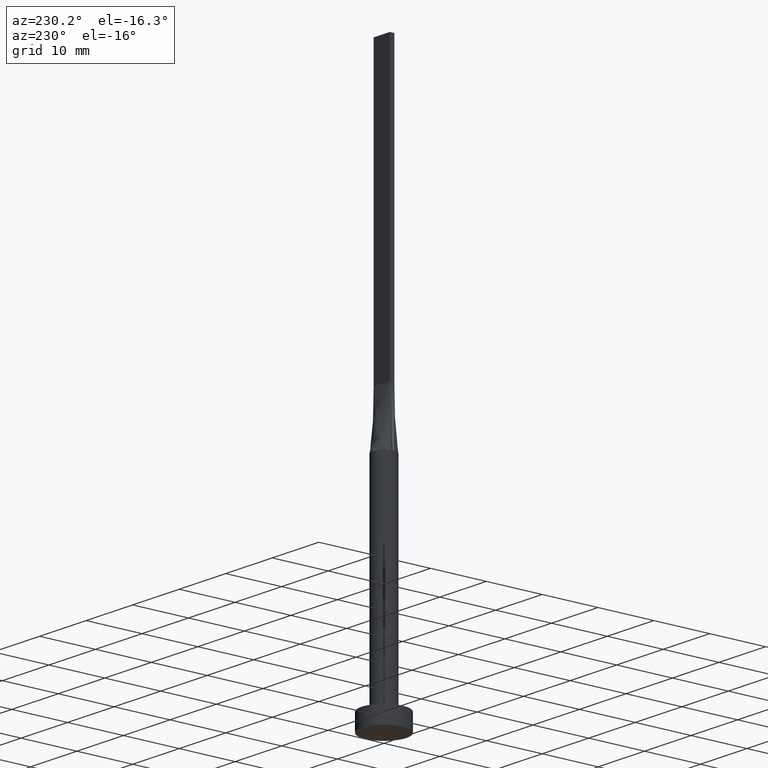
[diagram: clean part render]
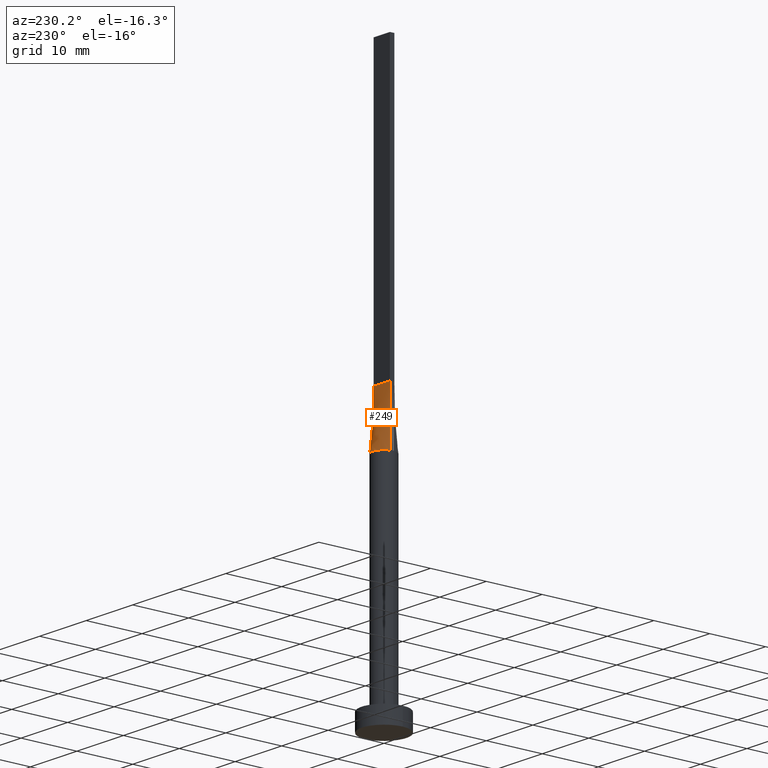
[diagram: same view with one face highlighted and labeled with its STEP entity id]
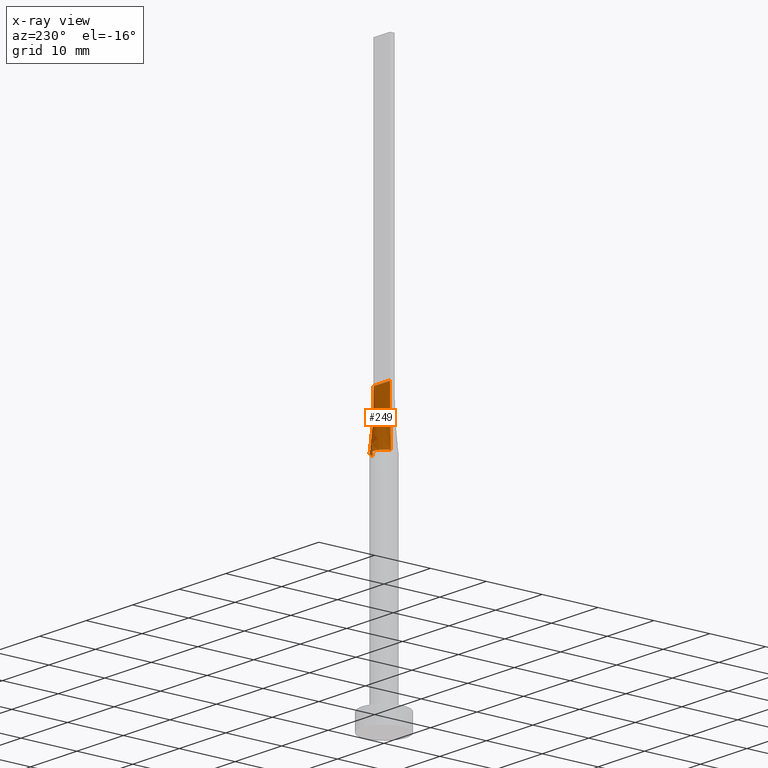
[diagram: x-ray of the same camera — body ghosted, the highlighted face saturated]
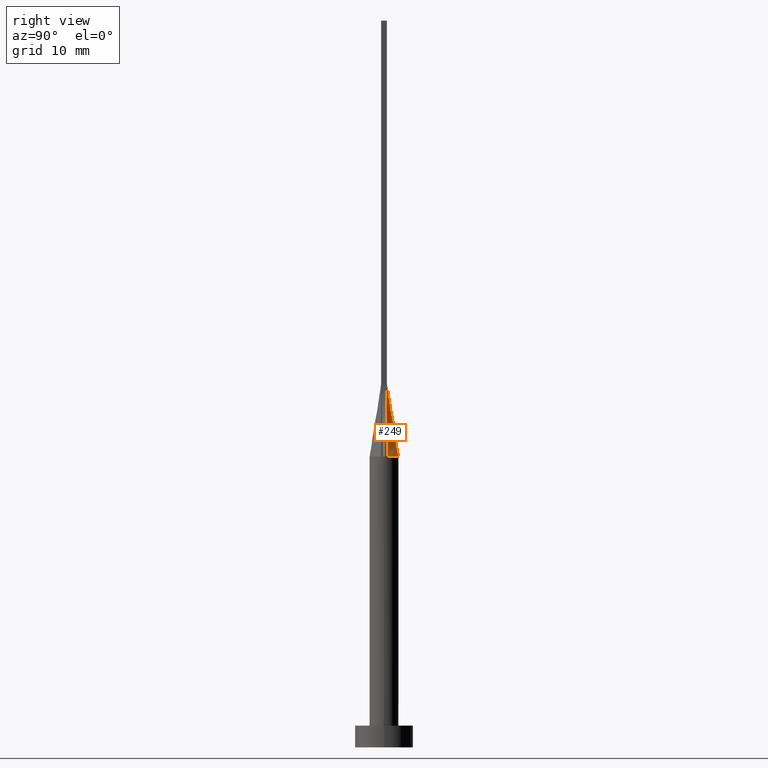
[diagram: same view with one face highlighted and labeled with its STEP entity id]
A machine part, auxiliary view. The second image highlights one B-rep face of the part: STEP entity #249.
The next image is the same camera in x-ray: the body ghosted, the highlighted face saturated — about 0% of this face is hidden behind the body in this view.
A second angle (right view) of the same face is appended — the face is thin or edge-on in the first view.
In plain terms, the highlighted face is a freeform B-spline surface patch.
Its self-contained STEP definition (entity closure, byte-faithful):
#11 = CARTESIAN_POINT ( 'NONE',  ( -1.749999999999999778, 0.4000000000000003553, 50.00000000000000000 ) ) ;
#27 = CARTESIAN_POINT ( 'NONE',  ( -1.542259513637947999, 1.293837904363075442, 40.00000000000000000 ) ) ;
#33 = CARTESIAN_POINT ( 'NONE',  ( -1.949717013143734468, 0.4456496030042821910, 40.00000000000000000 ) ) ;
#39 = CARTESIAN_POINT ( 'NONE',  ( -1.002818635501954381, 1.749193953526918532, 40.00000000000000711 ) ) ;
#40 = ORIENTED_EDGE ( 'NONE', *, *, #463, .F. ) ;
#42 = CARTESIAN_POINT ( 'NONE',  ( -1.209404336647713851, 1.609323485403446830, 40.00000000000000000 ) ) ;
#43 = CARTESIAN_POINT ( 'NONE',  ( 1.458333333333332593, 0.4000000000000003553, 50.00000000000000000 ) ) ;
#45 = EDGE_CURVE ( 'NONE', #346, #575, #207, .T. ) ;
#46 = CARTESIAN_POINT ( 'NONE',  ( -1.854458107241758746, 0.7741483657718513101, 40.00000000000000000 ) ) ;
#59 = CARTESIAN_POINT ( 'NONE',  ( -1.949896596863728293, 0.4456908869437610776, 40.00000000000000000 ) ) ;
#75 = CARTESIAN_POINT ( 'NONE',  ( -1.604166666666666519, 0.4000000000000004108, 50.00000000000000000 ) ) ;
#85 = CARTESIAN_POINT ( 'NONE',  ( 1.949877516600953875, 0.4456865912299994847, 40.00000000000000000 ) ) ;
#88 = CARTESIAN_POINT ( 'NONE',  ( 0.2916666666666662966, 0.4000000000000004108, 50.00000000000000711 ) ) ;
#90 = CARTESIAN_POINT ( 'NONE',  ( 1.854458107241759190, 0.7741483657718509770, 40.00000000000000711 ) ) ;
#92 = CARTESIAN_POINT ( 'NONE',  ( -0.5307032259479420588, 1.945168061822314609, 40.00000000000001421 ) ) ;
#94 = CARTESIAN_POINT ( 'NONE',  ( 1.002818635501954603, 1.749193953526918088, 40.00000000000000711 ) ) ;
#97 = CARTESIAN_POINT ( 'NONE',  ( 1.949877516600953875, 0.4456865912299994847, 40.00000000000000000 ) ) ;
#125 = CARTESIAN_POINT ( 'NONE',  ( -1.020833333333333259, 0.4000000000000004108, 50.00000000000000000 ) ) ;
#129 = CARTESIAN_POINT ( 'NONE',  ( -1.002818635501954381, 1.749193953526918532, 40.00000000000000711 ) ) ;
#135 = CARTESIAN_POINT ( 'NONE',  ( 1.604166666666665630, 0.4000000000000003553, 50.00000000000000000 ) ) ;
#136 = CARTESIAN_POINT ( 'NONE',  ( -0.2657394870669756437, 1.999999999999999556, 39.99999999999999289 ) ) ;
#138 = CARTESIAN_POINT ( 'NONE',  ( 0.7291666666666661856, 0.4000000000000004108, 50.00000000000000711 ) ) ;
#167 = CARTESIAN_POINT ( 'NONE',  ( -1.166666666666666519, 0.4000000000000004108, 50.00000000000000000 ) ) ;
#174 = ORIENTED_EDGE ( 'NONE', *, *, #198, .F. ) ;
#179 = CARTESIAN_POINT ( 'NONE',  ( -1.669156890509896796, 1.119033439449084399, 40.00000000000000000 ) ) ;
#184 = CARTESIAN_POINT ( 'NONE',  ( 0.5833333333333328152, 0.4000000000000004108, 50.00000000000000711 ) ) ;
#198 = EDGE_CURVE ( 'NONE', #317, #575, #409, .T. ) ;
#199 = LINE ( 'NONE', #202, #532 ) ;
#202 = CARTESIAN_POINT ( 'NONE',  ( 1.849858506571867123, 0.4228248015021409678, 45.00000000000000000 ) ) ;
#207 = LINE ( 'NONE', #518, #579 ) ;
#216 = CARTESIAN_POINT ( 'NONE',  ( -1.749999999999999778, 0.4000000000000003553, 50.00000000000000000 ) ) ;
#222 = CARTESIAN_POINT ( 'NONE',  ( 0.5307032259479425029, 1.945168061822314165, 40.00000000000000711 ) ) ;
#223 = CARTESIAN_POINT ( 'NONE',  ( -1.542259513637947999, 1.293837904363075442, 40.00000000000000000 ) ) ;
#225 = CARTESIAN_POINT ( 'NONE',  ( 0.1458333333333330373, 0.4000000000000004108, 50.00000000000000711 ) ) ;
#227 = CARTESIAN_POINT ( 'NONE',  ( 1.949717013143734468, 0.4456496030042822465, 40.00000000000000000 ) ) ;
#228 = CARTESIAN_POINT ( 'NONE',  ( 1.209404336647714073, 1.609323485403446830, 39.99999999999998579 ) ) ;
#230 = CARTESIAN_POINT ( 'NONE',  ( -1.913513237607142647, 0.6040411209768712375, 40.00000000000000000 ) ) ;
#231 = EDGE_CURVE ( 'NONE', #299, #346, #464, .T. ) ;
#244 = DIRECTION ( 'NONE',  ( -1.000000000000000000, -0.000000000000000000, -0.000000000000000000 ) ) ;
#245 = CARTESIAN_POINT ( 'NONE',  ( 1.749999999999999778, 0.4000000000000003553, 50.00000000000000000 ) ) ;
#249 = ADVANCED_FACE ( 'NONE', ( #323 ), #315, .T. ) ;
#250 = CARTESIAN_POINT ( 'NONE',  ( -1.749999999999999778, 0.4000000000000003553, 50.00000000000000000 ) ) ;
#251 = CARTESIAN_POINT ( 'NONE',  ( -1.458333333333333259, 0.4000000000000004108, 50.00000000000000000 ) ) ;
#257 = CARTESIAN_POINT ( 'NONE',  ( -1.209404336647713851, 1.609323485403446830, 40.00000000000000000 ) ) ;
#267 = CARTESIAN_POINT ( 'NONE',  ( 0.2657394870669761988, 1.999999999999999556, 39.99999999999999289 ) ) ;
#268 = CARTESIAN_POINT ( 'NONE',  ( 0.2657394870669761988, 1.999999999999999556, 39.99999999999999289 ) ) ;
#275 = CARTESIAN_POINT ( 'NONE',  ( 1.209404336647714073, 1.609323485403446830, 39.99999999999998579 ) ) ;
#299 = VERTEX_POINT ( 'NONE', #97 ) ;
#314 = CARTESIAN_POINT ( 'NONE',  ( 1.854458107241759190, 0.7741483657718509770, 40.00000000000000711 ) ) ;
#315 = B_SPLINE_SURFACE_WITH_KNOTS ( 'NONE', 3, 1, ( 
 ( #227, #352 ),
 ( #529, #135 ),
 ( #314, #43 ),
 ( #395, #573 ),
 ( #354, #530 ),
 ( #228, #138 ),
 ( #576, #184 ),
 ( #222, #88 ),
 ( #267, #225 ),
 ( #136, #316 ),
 ( #92, #480 ),
 ( #129, #513 ),
 ( #257, #471 ),
 ( #27, #125 ),
 ( #558, #167 ),
 ( #523, #251 ),
 ( #342, #75 ),
 ( #33, #216 ) ),
 .UNSPECIFIED., .F., .F., .F.,
 ( 4, 2, 2, 2, 2, 2, 2, 2, 4 ),
 ( 2, 2 ),
 ( 0.000000000000000000, 0.1250000000000000000, 0.2500000000000000000, 0.3750000000000000000, 0.5000000000000000000, 0.6250000000000000000, 0.7500000000000000000, 0.8750000000000000000, 1.000000000000000000 ),
 ( 0.000000000000000000, 1.000000000000000000 ),
 .UNSPECIFIED. ) ;
#316 = CARTESIAN_POINT ( 'NONE',  ( -0.1458333333333335369, 0.4000000000000004108, 50.00000000000000711 ) ) ;
#317 = VERTEX_POINT ( 'NONE', #245 ) ;
#323 = FACE_OUTER_BOUND ( 'NONE', #581, .T. ) ;
#326 = DIRECTION ( 'NONE',  ( -0.01996751149463112454, -0.004564002627344150749, 0.9997902121768992290 ) ) ;
#341 = VECTOR ( 'NONE', #244, 1000.000000000000000 ) ;
#342 = CARTESIAN_POINT ( 'NONE',  ( -1.913513237607142647, 0.6040411209768712375, 40.00000000000000000 ) ) ;
#346 = VERTEX_POINT ( 'NONE', #59 ) ;
#352 = CARTESIAN_POINT ( 'NONE',  ( 1.749999999999998890, 0.4000000000000003553, 50.00000000000000000 ) ) ;
#354 = CARTESIAN_POINT ( 'NONE',  ( 1.542259513637948443, 1.293837904363074998, 40.00000000000000000 ) ) ;
#360 = CARTESIAN_POINT ( 'NONE',  ( -0.5307032259479420588, 1.945168061822314609, 40.00000000000001421 ) ) ;
#390 = ORIENTED_EDGE ( 'NONE', *, *, #45, .T. ) ;
#395 = CARTESIAN_POINT ( 'NONE',  ( 1.669156890509896352, 1.119033439449084177, 40.00000000000000000 ) ) ;
#398 = CARTESIAN_POINT ( 'NONE',  ( 1.669156890509896352, 1.119033439449084177, 40.00000000000000000 ) ) ;
#409 = LINE ( 'NONE', #11, #341 ) ;
#425 = DIRECTION ( 'NONE',  ( 0.01996751149463110026, -0.004564002627344216668, 0.9997902121768992290 ) ) ;
#439 = CARTESIAN_POINT ( 'NONE',  ( 0.5307032259479425029, 1.945168061822314165, 40.00000000000000711 ) ) ;
#441 = CARTESIAN_POINT ( 'NONE',  ( -0.2657394870669756437, 1.999999999999999556, 39.99999999999999289 ) ) ;
#463 = EDGE_CURVE ( 'NONE', #299, #317, #199, .T. ) ;
#464 = B_SPLINE_CURVE_WITH_KNOTS ( 'NONE', 3,
 ( #85, #495, #90, #398, #578, #275, #94, #439, #268, #441, #360, #39, #42, #223, #179, #46, #230, #533 ),
 .UNSPECIFIED., .F., .F.,
 ( 4, 2, 2, 2, 2, 2, 2, 2, 4 ),
 ( 0.000000000000000000, 0.1250000000000000000, 0.2500000000000000000, 0.3750000000000000000, 0.5000000000000000000, 0.6250000000000000000, 0.7500000000000000000, 0.8750000000000000000, 1.000000000000000000 ),
 .UNSPECIFIED. ) ;
#471 = CARTESIAN_POINT ( 'NONE',  ( -0.7291666666666668517, 0.4000000000000004108, 50.00000000000000000 ) ) ;
#480 = CARTESIAN_POINT ( 'NONE',  ( -0.2916666666666668517, 0.4000000000000004108, 50.00000000000000000 ) ) ;
#484 = ORIENTED_EDGE ( 'NONE', *, *, #231, .T. ) ;
#495 = CARTESIAN_POINT ( 'NONE',  ( 1.913513237607142647, 0.6040411209768705714, 39.99999999999999289 ) ) ;
#513 = CARTESIAN_POINT ( 'NONE',  ( -0.5833333333333334814, 0.4000000000000004108, 50.00000000000000000 ) ) ;
#518 = CARTESIAN_POINT ( 'NONE',  ( -1.849858506571867123, 0.4228248015021412454, 45.00000000000000000 ) ) ;
#523 = CARTESIAN_POINT ( 'NONE',  ( -1.854458107241758746, 0.7741483657718513101, 40.00000000000000000 ) ) ;
#529 = CARTESIAN_POINT ( 'NONE',  ( 1.913513237607142647, 0.6040411209768705714, 39.99999999999999289 ) ) ;
#530 = CARTESIAN_POINT ( 'NONE',  ( 1.020833333333332815, 0.4000000000000004108, 50.00000000000000000 ) ) ;
#532 = VECTOR ( 'NONE', #326, 1000.000000000000114 ) ;
#533 = CARTESIAN_POINT ( 'NONE',  ( -1.949896596863728293, 0.4456908869437610776, 40.00000000000000000 ) ) ;
#558 = CARTESIAN_POINT ( 'NONE',  ( -1.669156890509896796, 1.119033439449084399, 40.00000000000000000 ) ) ;
#573 = CARTESIAN_POINT ( 'NONE',  ( 1.166666666666666075, 0.4000000000000003553, 50.00000000000000000 ) ) ;
#575 = VERTEX_POINT ( 'NONE', #250 ) ;
#576 = CARTESIAN_POINT ( 'NONE',  ( 1.002818635501954603, 1.749193953526918088, 40.00000000000000711 ) ) ;
#578 = CARTESIAN_POINT ( 'NONE',  ( 1.542259513637948443, 1.293837904363074998, 40.00000000000000000 ) ) ;
#579 = VECTOR ( 'NONE', #425, 1000.000000000000114 ) ;
#581 = EDGE_LOOP ( 'NONE', ( #484, #390, #174, #40 ) ) ;